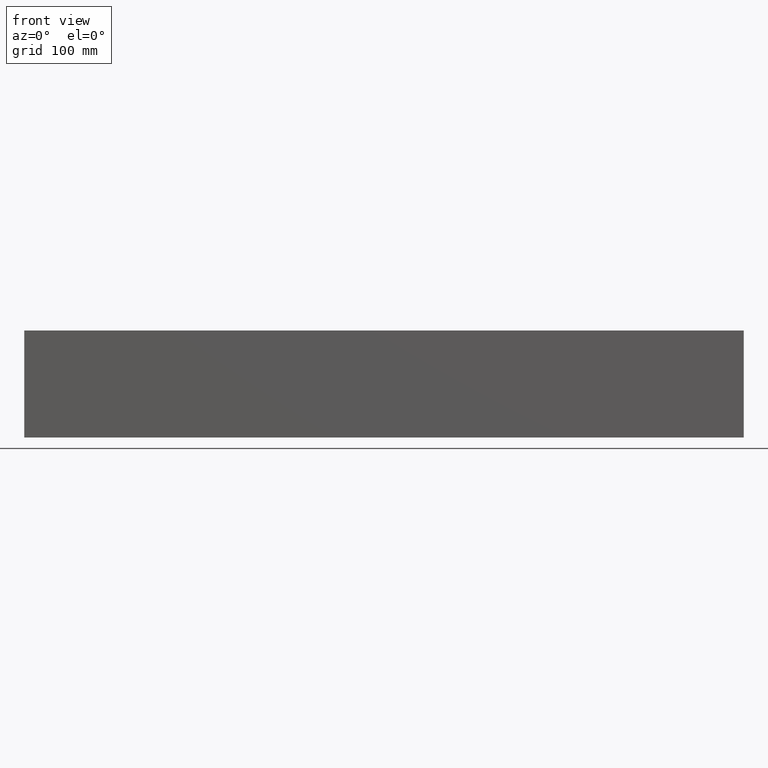
[diagram: clean part render]
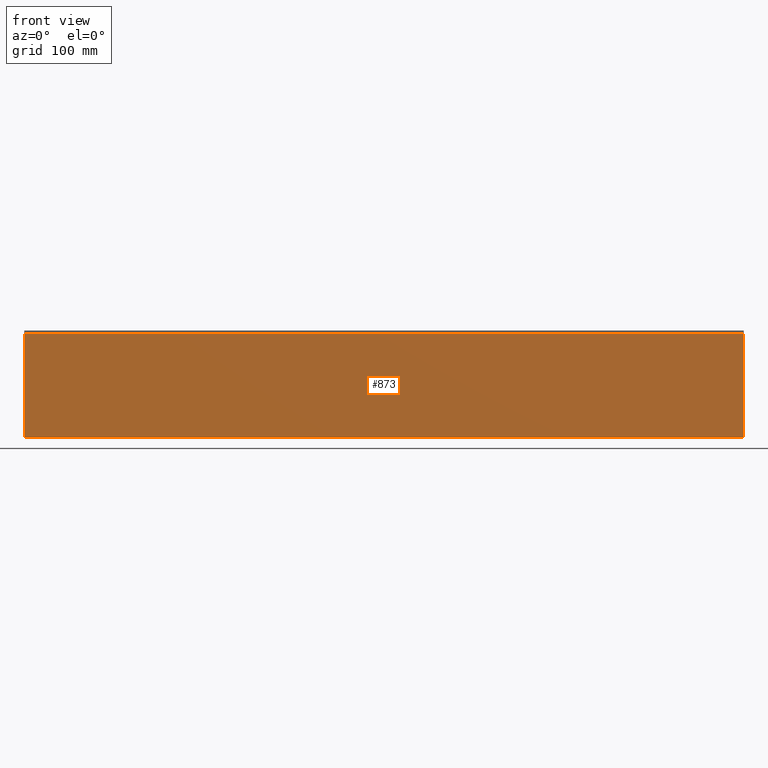
[diagram: same view with one face highlighted and labeled with its STEP entity id]
A machine part, front view. The second image highlights one B-rep face of the part: STEP entity #873.
In plain terms, the highlighted planar face has unit normal (-0, 1, 0).
Its self-contained STEP definition (entity closure, byte-faithful):
#12 = CARTESIAN_POINT ( 'NONE',  ( 0.0000000000000000000, -1.734723475976807094E-14, 141.0000000000000000 ) ) ;
#14 = VECTOR ( 'NONE', #285, 1000.000000000000000 ) ;
#174 = DIRECTION ( 'NONE',  ( -0.0000000000000000000, 1.230300337572203632E-16, -1.000000000000000000 ) ) ;
#175 = CARTESIAN_POINT ( 'NONE',  ( 0.0000000000000000000, 0.0000000000000000000, 0.0000000000000000000 ) ) ;
#176 = LINE ( 'NONE', #175, #594 ) ;
#285 = DIRECTION ( 'NONE',  ( -1.000000000000000000, -0.0000000000000000000, -0.0000000000000000000 ) ) ;
#286 = CARTESIAN_POINT ( 'NONE',  ( 975.0000000000000000, 0.0000000000000000000, 0.0000000000000000000 ) ) ;
#287 = LINE ( 'NONE', #286, #14 ) ;
#329 = DIRECTION ( 'NONE',  ( -1.000000000000000000, -0.0000000000000000000, -0.0000000000000000000 ) ) ;
#330 = CARTESIAN_POINT ( 'NONE',  ( 975.0000000000000000, -1.734723475976807094E-14, 141.0000000000000000 ) ) ;
#332 = LINE ( 'NONE', #330, #1396 ) ;
#403 = EDGE_CURVE ( 'NONE', #717, #658, #332, .T. ) ;
#430 = EDGE_CURVE ( 'NONE', #886, #1542, #287, .T. ) ;
#458 = VECTOR ( 'NONE', #866, 1000.000000000000000 ) ;
#503 = EDGE_CURVE ( 'NONE', #658, #1542, #176, .T. ) ;
#533 = AXIS2_PLACEMENT_3D ( 'NONE', #1298, #1292, #1291 ) ;
#594 = VECTOR ( 'NONE', #174, 1000.000000000000000 ) ;
#658 = VERTEX_POINT ( 'NONE', #12 ) ;
#708 = ORIENTED_EDGE ( 'NONE', *, *, #403, .T. ) ;
#717 = VERTEX_POINT ( 'NONE', #1437 ) ;
#809 = CARTESIAN_POINT ( 'NONE',  ( 0.0000000000000000000, 0.0000000000000000000, 0.0000000000000000000 ) ) ;
#866 = DIRECTION ( 'NONE',  ( -0.0000000000000000000, 1.230300337572203632E-16, -1.000000000000000000 ) ) ;
#869 = CARTESIAN_POINT ( 'NONE',  ( 975.0000000000000000, 0.0000000000000000000, 0.0000000000000000000 ) ) ;
#870 = LINE ( 'NONE', #869, #458 ) ;
#873 = ADVANCED_FACE ( 'NONE', ( #1301 ), #1300, .F. ) ;
#886 = VERTEX_POINT ( 'NONE', #1268 ) ;
#989 = ORIENTED_EDGE ( 'NONE', *, *, #430, .F. ) ;
#1098 = ORIENTED_EDGE ( 'NONE', *, *, #1443, .F. ) ;
#1240 = ORIENTED_EDGE ( 'NONE', *, *, #503, .T. ) ;
#1268 = CARTESIAN_POINT ( 'NONE',  ( 975.0000000000000000, 0.0000000000000000000, 0.0000000000000000000 ) ) ;
#1291 = DIRECTION ( 'NONE',  ( 0.0000000000000000000, -1.230300337572203632E-16, 1.000000000000000000 ) ) ;
#1292 = DIRECTION ( 'NONE',  ( -0.0000000000000000000, 1.000000000000000000, 1.230300337572203632E-16 ) ) ;
#1298 = CARTESIAN_POINT ( 'NONE',  ( 975.0000000000000000, 0.0000000000000000000, 0.0000000000000000000 ) ) ;
#1300 = PLANE ( 'NONE',  #533 ) ;
#1301 = FACE_OUTER_BOUND ( 'NONE', #1474, .T. ) ;
#1396 = VECTOR ( 'NONE', #329, 1000.000000000000000 ) ;
#1437 = CARTESIAN_POINT ( 'NONE',  ( 975.0000000000000000, -1.734723475976807094E-14, 141.0000000000000000 ) ) ;
#1443 = EDGE_CURVE ( 'NONE', #717, #886, #870, .T. ) ;
#1474 = EDGE_LOOP ( 'NONE', ( #708, #1240, #989, #1098 ) ) ;
#1542 = VERTEX_POINT ( 'NONE', #809 ) ;